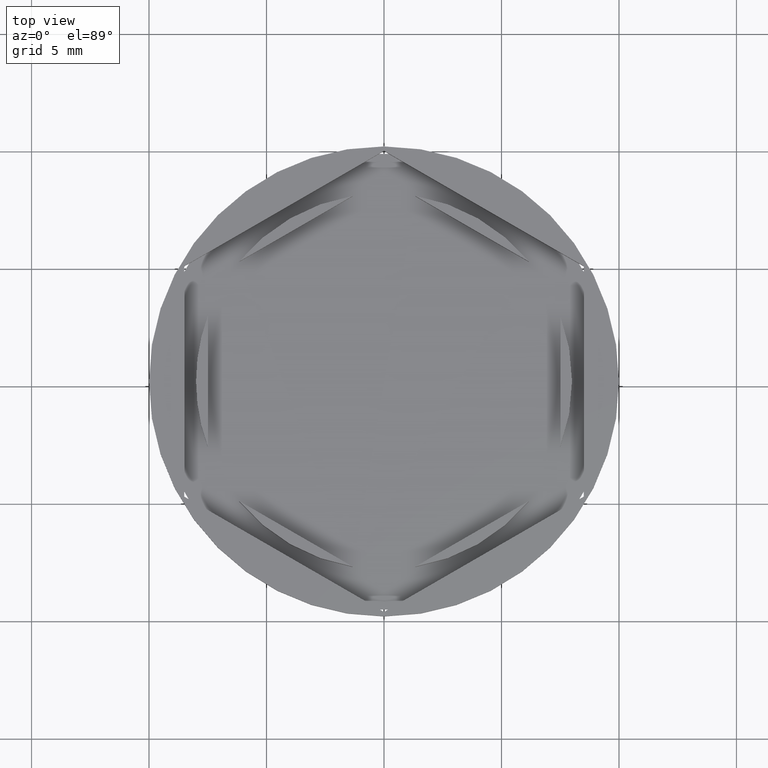
[diagram: clean part render]
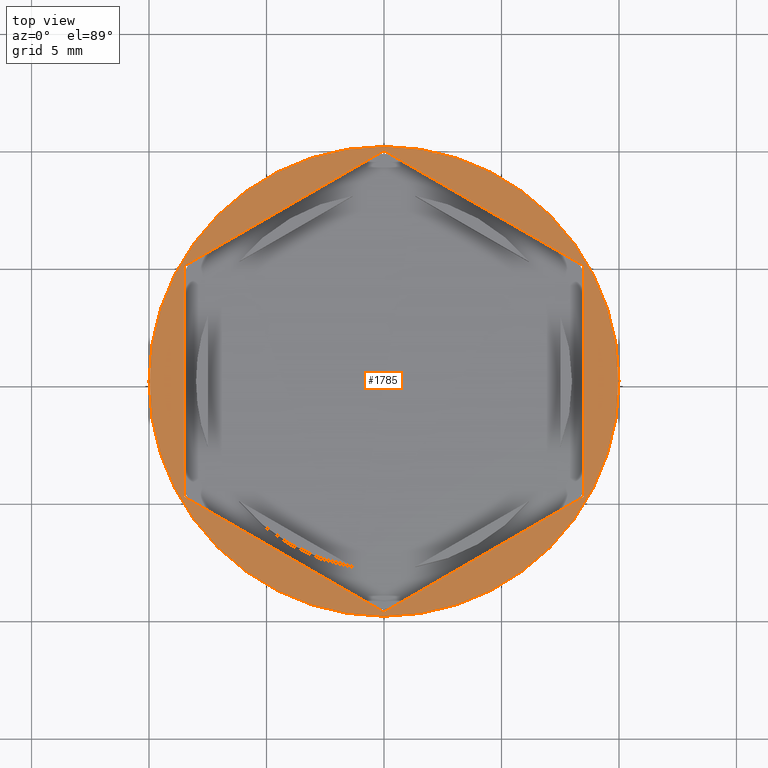
[diagram: same view with one face highlighted and labeled with its STEP entity id]
A machine part, top view. The second image highlights one B-rep face of the part: STEP entity #1785.
In plain terms, the highlighted planar face has unit normal (0, -0, 1).
Its self-contained STEP definition (entity closure, byte-faithful):
#63 = LINE ( 'NONE', #1548, #532 ) ;
#89 = VERTEX_POINT ( 'NONE', #924 ) ;
#98 = EDGE_CURVE ( 'NONE', #1551, #425, #2103, .T. ) ;
#115 = CARTESIAN_POINT ( 'NONE',  ( 10.00000000000000000, 0.000000000000000000, 0.000000000000000000 ) ) ;
#126 = EDGE_LOOP ( 'NONE', ( #1744, #911, #1884, #1421, #446, #559 ) ) ;
#138 = CARTESIAN_POINT ( 'NONE',  ( 0.000000000000000000, 0.000000000000000000, 0.000000000000000000 ) ) ;
#257 = VERTEX_POINT ( 'NONE', #1688 ) ;
#302 = FACE_OUTER_BOUND ( 'NONE', #2139, .T. ) ;
#312 = DIRECTION ( 'NONE',  ( -0.8660254037844387076, 0.4999999999999997780, 0.000000000000000000 ) ) ;
#364 = AXIS2_PLACEMENT_3D ( 'NONE', #138, #1001, #1679 ) ;
#371 = CARTESIAN_POINT ( 'NONE',  ( -8.500000000000001776, -4.907477288111819824, 0.000000000000000000 ) ) ;
#388 = DIRECTION ( 'NONE',  ( 0.8660254037844387076, 0.4999999999999999445, 0.000000000000000000 ) ) ;
#389 = AXIS2_PLACEMENT_3D ( 'NONE', #439, #460, #907 ) ;
#405 = CARTESIAN_POINT ( 'NONE',  ( -10.00000000000000000, 1.224646799147353256E-15, 0.000000000000000000 ) ) ;
#425 = VERTEX_POINT ( 'NONE', #115 ) ;
#431 = AXIS2_PLACEMENT_3D ( 'NONE', #1113, #1103, #1806 ) ;
#439 = CARTESIAN_POINT ( 'NONE',  ( 0.000000000000000000, 0.000000000000000000, 0.000000000000000000 ) ) ;
#446 = ORIENTED_EDGE ( 'NONE', *, *, #1028, .F. ) ;
#460 = DIRECTION ( 'NONE',  ( -0.000000000000000000, -0.000000000000000000, 1.000000000000000000 ) ) ;
#532 = VECTOR ( 'NONE', #706, 1000.000000000000000 ) ;
#550 = EDGE_CURVE ( 'NONE', #89, #257, #1732, .T. ) ;
#559 = ORIENTED_EDGE ( 'NONE', *, *, #550, .F. ) ;
#679 = CARTESIAN_POINT ( 'NONE',  ( 8.500000000000000000, -4.907477288111820712, 0.000000000000000000 ) ) ;
#706 = DIRECTION ( 'NONE',  ( 0.000000000000000000, -1.000000000000000000, 0.000000000000000000 ) ) ;
#707 = VERTEX_POINT ( 'NONE', #1938 ) ;
#725 = CARTESIAN_POINT ( 'NONE',  ( 0.000000000000000000, 9.814954576223637872, 0.000000000000000000 ) ) ;
#790 = VERTEX_POINT ( 'NONE', #2028 ) ;
#800 = CARTESIAN_POINT ( 'NONE',  ( 8.500000000000000000, -4.907477288111820712, 0.000000000000000000 ) ) ;
#907 = DIRECTION ( 'NONE',  ( 1.000000000000000000, 0.000000000000000000, 0.000000000000000000 ) ) ;
#911 = ORIENTED_EDGE ( 'NONE', *, *, #1110, .F. ) ;
#924 = CARTESIAN_POINT ( 'NONE',  ( 0.000000000000000000, 9.814954576223637872, 0.000000000000000000 ) ) ;
#1001 = DIRECTION ( 'NONE',  ( 0.000000000000000000, -0.000000000000000000, 1.000000000000000000 ) ) ;
#1028 = EDGE_CURVE ( 'NONE', #257, #790, #63, .T. ) ;
#1053 = LINE ( 'NONE', #371, #2004 ) ;
#1100 = EDGE_CURVE ( 'NONE', #425, #1551, #1193, .T. ) ;
#1103 = DIRECTION ( 'NONE',  ( -0.000000000000000000, -0.000000000000000000, 1.000000000000000000 ) ) ;
#1110 = EDGE_CURVE ( 'NONE', #2048, #1393, #1270, .T. ) ;
#1113 = CARTESIAN_POINT ( 'NONE',  ( 0.000000000000000000, 0.000000000000000000, 0.000000000000000000 ) ) ;
#1122 = VECTOR ( 'NONE', #1561, 999.9999999999998863 ) ;
#1160 = PLANE ( 'NONE',  #364 ) ;
#1164 = CARTESIAN_POINT ( 'NONE',  ( 8.500000000000000000, 4.907477288111820712, 0.000000000000000000 ) ) ;
#1193 = CIRCLE ( 'NONE', #431, 10.00000000000000000 ) ;
#1244 = ORIENTED_EDGE ( 'NONE', *, *, #98, .T. ) ;
#1270 = LINE ( 'NONE', #800, #1593 ) ;
#1298 = EDGE_CURVE ( 'NONE', #790, #707, #1053, .T. ) ;
#1365 = ORIENTED_EDGE ( 'NONE', *, *, #1100, .T. ) ;
#1391 = EDGE_CURVE ( 'NONE', #1393, #89, #2148, .T. ) ;
#1393 = VERTEX_POINT ( 'NONE', #1164 ) ;
#1421 = ORIENTED_EDGE ( 'NONE', *, *, #1298, .F. ) ;
#1485 = DIRECTION ( 'NONE',  ( 0.000000000000000000, 1.000000000000000000, 0.000000000000000000 ) ) ;
#1521 = EDGE_CURVE ( 'NONE', #707, #2048, #2074, .T. ) ;
#1548 = CARTESIAN_POINT ( 'NONE',  ( -8.500000000000001776, 4.907477288111815383, 0.000000000000000000 ) ) ;
#1551 = VERTEX_POINT ( 'NONE', #405 ) ;
#1561 = DIRECTION ( 'NONE',  ( -0.8660254037844385966, -0.5000000000000002220, 0.000000000000000000 ) ) ;
#1569 = CARTESIAN_POINT ( 'NONE',  ( 8.334195073742550113E-16, -9.814954576223639648, 0.000000000000000000 ) ) ;
#1593 = VECTOR ( 'NONE', #1485, 1000.000000000000000 ) ;
#1647 = FACE_BOUND ( 'NONE', #126, .T. ) ;
#1679 = DIRECTION ( 'NONE',  ( 1.000000000000000000, 0.000000000000000000, 0.000000000000000000 ) ) ;
#1688 = CARTESIAN_POINT ( 'NONE',  ( -8.500000000000001776, 4.907477288111815383, 0.000000000000000000 ) ) ;
#1732 = LINE ( 'NONE', #725, #1122 ) ;
#1744 = ORIENTED_EDGE ( 'NONE', *, *, #1391, .F. ) ;
#1785 = ADVANCED_FACE ( 'NONE', ( #1647, #302 ), #1160, .T. ) ;
#1806 = DIRECTION ( 'NONE',  ( 1.000000000000000000, 0.000000000000000000, 0.000000000000000000 ) ) ;
#1831 = VECTOR ( 'NONE', #388, 999.9999999999998863 ) ;
#1847 = CARTESIAN_POINT ( 'NONE',  ( 8.500000000000000000, 4.907477288111820712, 0.000000000000000000 ) ) ;
#1884 = ORIENTED_EDGE ( 'NONE', *, *, #1521, .F. ) ;
#1912 = DIRECTION ( 'NONE',  ( 0.8660254037844387076, -0.4999999999999999445, 0.000000000000000000 ) ) ;
#1938 = CARTESIAN_POINT ( 'NONE',  ( 8.334195073742550113E-16, -9.814954576223639648, 0.000000000000000000 ) ) ;
#2004 = VECTOR ( 'NONE', #1912, 1000.000000000000000 ) ;
#2028 = CARTESIAN_POINT ( 'NONE',  ( -8.500000000000001776, -4.907477288111819824, 0.000000000000000000 ) ) ;
#2048 = VERTEX_POINT ( 'NONE', #679 ) ;
#2070 = VECTOR ( 'NONE', #312, 1000.000000000000114 ) ;
#2074 = LINE ( 'NONE', #1569, #1831 ) ;
#2103 = CIRCLE ( 'NONE', #389, 10.00000000000000000 ) ;
#2139 = EDGE_LOOP ( 'NONE', ( #1365, #1244 ) ) ;
#2148 = LINE ( 'NONE', #1847, #2070 ) ;